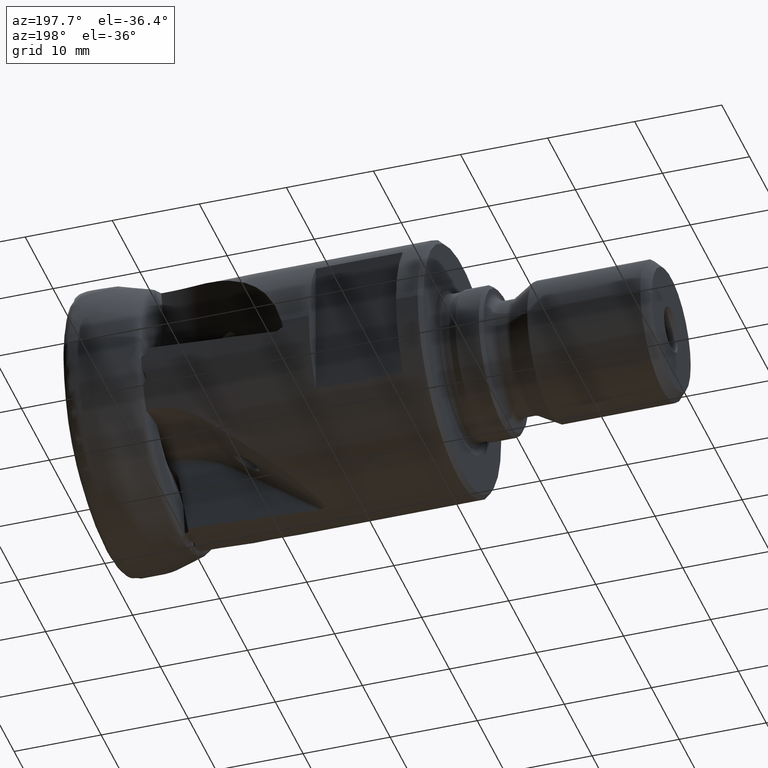
[diagram: clean part render]
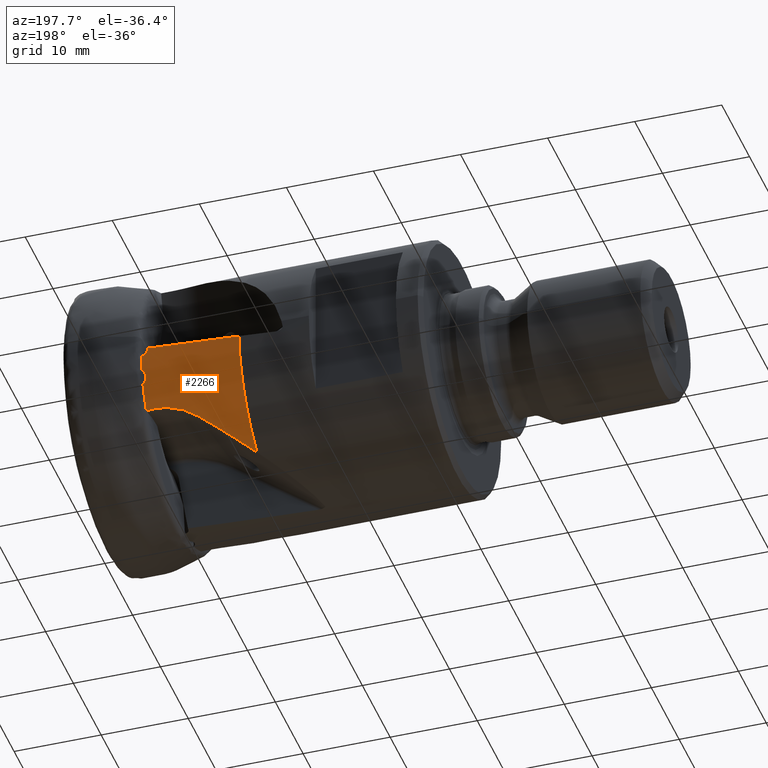
[diagram: same view with one face highlighted and labeled with its STEP entity id]
A machine part, auxiliary view. The second image highlights one B-rep face of the part: STEP entity #2266.
In plain terms, the highlighted conical surface has half-angle 0.432 deg.
Its self-contained STEP definition (entity closure, byte-faithful):
#28 = CARTESIAN_POINT ( 'NONE',  ( -9.488682350090380500, 14.41927078004068500, -0.2124144521498650100 ) ) ;
#68 = CARTESIAN_POINT ( 'NONE',  ( -10.51482623484257900, 12.51708256814934100, -7.176798088597557500 ) ) ;
#285 = CARTESIAN_POINT ( 'NONE',  ( -9.474060610462377200, 14.41484194131120100, -0.4118803801288440900 ) ) ;
#330 = CIRCLE ( 'NONE', #2502, 14.41529774433226100 ) ;
#546 = ORIENTED_EDGE ( 'NONE', *, *, #2109, .T. ) ;
#563 = VERTEX_POINT ( 'NONE', #6394 ) ;
#581 = EDGE_CURVE ( 'NONE', #3032, #2215, #2017, .T. ) ;
#583 = CARTESIAN_POINT ( 'NONE',  ( -9.252863098958306100, 12.52891085012548300, -7.137216703362820900 ) ) ;
#732 = CARTESIAN_POINT ( 'NONE',  ( -20.00000000000000000, 14.46901387109743300, -0.9474373847334510700 ) ) ;
#1073 = CARTESIAN_POINT ( 'NONE',  ( -9.378022152841058600, 14.39968294654202600, -0.7768286325400443100 ) ) ;
#1248 = AXIS2_PLACEMENT_3D ( 'NONE', #6348, #4313, #2800 ) ;
#1424 = CARTESIAN_POINT ( 'NONE',  ( -8.753422719671876400, 14.13042707852885400, -2.851638061909195000 ) ) ;
#1559 = CARTESIAN_POINT ( 'NONE',  ( -18.39673328062164600, 9.369468983272712500, -11.18653030867218100 ) ) ;
#1574 = CARTESIAN_POINT ( 'NONE',  ( -9.474060610462377200, 14.41484194131120100, -0.4118803801288440900 ) ) ;
#1585 = CARTESIAN_POINT ( 'NONE',  ( -12.92883651455309600, 12.17430072818993000, -7.778739744782705600 ) ) ;
#1595 = CARTESIAN_POINT ( 'NONE',  ( -8.939796449609019600, 14.37246185970106900, -1.128746984833576100 ) ) ;
#1651 = CARTESIAN_POINT ( 'NONE',  ( -8.753422719671876400, 14.13042707852885400, -2.851638061909195000 ) ) ;
#1655 = VERTEX_POINT ( 'NONE', #4578 ) ;
#1661 = ORIENTED_EDGE ( 'NONE', *, *, #3391, .F. ) ;
#1663 = CARTESIAN_POINT ( 'NONE',  ( -8.753422719671840800, -1.099598448417557100E-015, 0.0000000000000000000 ) ) ;
#1852 = B_SPLINE_CURVE_WITH_KNOTS ( 'NONE', 3,
 ( #5643, #2075, #4637, #1585, #5146, #2091, #5667, #2617, #6171, #3132, #68, #3631, #583, #4141 ),
 .UNSPECIFIED., .F., .F.,
 ( 4, 2, 2, 2, 2, 2, 4 ),
 ( 0.0005581979079638856900, 0.002063740630932714600, 0.002816511992417131800, 0.003569283353901548600, 0.004322054715385964500, 0.005074826076870381800, 0.006580368799839220500 ),
 .UNSPECIFIED. ) ;
#1946 = CARTESIAN_POINT ( 'NONE',  ( -9.174492714742243000, 13.98732788047316700, -3.503239865923081900 ) ) ;
#2017 = CIRCLE ( 'NONE', #2582, 14.50000000000000000 ) ;
#2075 = CARTESIAN_POINT ( 'NONE',  ( -14.01518296094445900, 11.83060589154204800, -8.311713707207916400 ) ) ;
#2081 = CARTESIAN_POINT ( 'NONE',  ( -16.49056846397207100, 14.45859552269082500, -0.7020340256850494700 ) ) ;
#2084 = CARTESIAN_POINT ( 'NONE',  ( -9.483877808903248100, 14.41825498506233000, -0.2789127871174085800 ) ) ;
#2091 = CARTESIAN_POINT ( 'NONE',  ( -12.22805648381694100, 12.32672470748464400, -7.524408140927995700 ) ) ;
#2109 = EDGE_CURVE ( 'NONE', #6056, #5670, #6071, .T. ) ;
#2172 = DIRECTION ( 'NONE',  ( -1.203390666459773500E-016, 1.000000000000000000, 0.0000000000000000000 ) ) ;
#2181 = ORIENTED_EDGE ( 'NONE', *, *, #4199, .F. ) ;
#2215 = VERTEX_POINT ( 'NONE', #732 ) ;
#2266 = ADVANCED_FACE ( 'NONE', ( #3174 ), #4196, .T. ) ;
#2268 = ORIENTED_EDGE ( 'NONE', *, *, #4633, .F. ) ;
#2383 = CARTESIAN_POINT ( 'NONE',  ( -8.753422719671840800, -1.099598448417557100E-015, 0.0000000000000000000 ) ) ;
#2429 =( BOUNDED_CURVE ( )  B_SPLINE_CURVE ( 3, ( #1574, #5136, #2084, #5657 ),
 .UNSPECIFIED., .F., .F. ) 
 B_SPLINE_CURVE_WITH_KNOTS ( ( 4, 4 ),
 ( 5.823188729631430000, 5.837039783446341400 ),
 .UNSPECIFIED. ) 
 CURVE ( )  GEOMETRIC_REPRESENTATION_ITEM ( )  RATIONAL_B_SPLINE_CURVE ( ( 1.000000000000000000, 0.9999840124229191200, 0.9999840124229191200, 1.000000000000000000 ) ) 
 REPRESENTATION_ITEM ( '' )  );
#2450 = CARTESIAN_POINT ( 'NONE',  ( -9.128166366310688700, 13.86211373022583300, -3.967948542563008100 ) ) ;
#2502 = AXIS2_PLACEMENT_3D ( 'NONE', #2383, #5956, #2912 ) ;
#2513 = CARTESIAN_POINT ( 'NONE',  ( -9.488682350090380500, 14.41927078004068500, -0.2124144521498650100 ) ) ;
#2581 = B_SPLINE_CURVE_WITH_KNOTS ( 'NONE', 3,
 ( #4103, #6161, #1073, #4644, #1595, #5151 ),
 .UNSPECIFIED., .F., .F.,
 ( 4, 2, 4 ),
 ( 1.192622389734054900E-018, 0.0005568184336804439300, 0.001113636867360886600 ),
 .UNSPECIFIED. ) ;
#2582 = AXIS2_PLACEMENT_3D ( 'NONE', #4814, #4293, #3351 ) ;
#2593 = CARTESIAN_POINT ( 'NONE',  ( -16.51096948033420400, 10.62428039444796800, -9.981921178612754600 ) ) ;
#2617 = CARTESIAN_POINT ( 'NONE',  ( -11.50773778804006200, 12.43502472476155400, -7.333091417564150800 ) ) ;
#2629 =( BOUNDED_CURVE ( )  B_SPLINE_CURVE ( 3, ( #28, #4084, #2081, #5653 ),
 .UNSPECIFIED., .F., .F. ) 
 B_SPLINE_CURVE_WITH_KNOTS ( ( 4, 4 ),
 ( 4.619132061810880400, 4.669712533094283900 ),
 .UNSPECIFIED. ) 
 CURVE ( )  GEOMETRIC_REPRESENTATION_ITEM ( )  RATIONAL_B_SPLINE_CURVE ( ( 1.000000000000000000, 0.9997868126902386100, 0.9997868126902386100, 1.000000000000000000 ) ) 
 REPRESENTATION_ITEM ( '' )  );
#2800 = DIRECTION ( 'NONE',  ( 1.203833085341295600E-016, -1.000000000000000000, 0.0000000000000000000 ) ) ;
#2834 = EDGE_CURVE ( 'NONE', #2952, #1655, #2581, .T. ) ;
#2912 = DIRECTION ( 'NONE',  ( -1.203390666459773500E-016, 1.000000000000000000, 0.0000000000000000000 ) ) ;
#2952 = VERTEX_POINT ( 'NONE', #285 ) ;
#2979 = CARTESIAN_POINT ( 'NONE',  ( -8.880279888315378400, 13.74007628648560500, -4.364488771589395600 ) ) ;
#2986 = AXIS2_PLACEMENT_3D ( 'NONE', #1663, #5225, #2172 ) ;
#3032 = VERTEX_POINT ( 'NONE', #4891 ) ;
#3132 = CARTESIAN_POINT ( 'NONE',  ( -10.76731270519524100, 12.50302827615779200, -7.205175213490162100 ) ) ;
#3174 = FACE_OUTER_BOUND ( 'NONE', #4682, .T. ) ;
#3351 = DIRECTION ( 'NONE',  ( -2.392722035830079000E-016, 1.000000000000000000, 0.0000000000000000000 ) ) ;
#3391 = EDGE_CURVE ( 'NONE', #5727, #2215, #2629, .T. ) ;
#3631 = CARTESIAN_POINT ( 'NONE',  ( -9.755585149620213100, 12.53960627480874400, -7.125875921168504800 ) ) ;
#3668 = ORIENTED_EDGE ( 'NONE', *, *, #2834, .T. ) ;
#3776 = ORIENTED_EDGE ( 'NONE', *, *, #4189, .F. ) ;
#4084 = CARTESIAN_POINT ( 'NONE',  ( -12.98604879488196500, 14.44201095671956700, -0.4569741378323011700 ) ) ;
#4103 = CARTESIAN_POINT ( 'NONE',  ( -9.474060610462377200, 14.41484194131120100, -0.4118803801288440900 ) ) ;
#4141 = CARTESIAN_POINT ( 'NONE',  ( -8.753422719671842600, 12.49331753896026100, -7.191510684721166900 ) ) ;
#4189 = EDGE_CURVE ( 'NONE', #3032, #563, #4915, .T. ) ;
#4196 = CONICAL_SURFACE ( 'NONE', #1248, 14.41000000000000200, 0.007531238360420368000 ) ;
#4199 = EDGE_CURVE ( 'NONE', #563, #5297, #1852, .T. ) ;
#4293 = DIRECTION ( 'NONE',  ( 1.000000000000000000, 1.224646799147351500E-016, -0.0000000000000000000 ) ) ;
#4313 = DIRECTION ( 'NONE',  ( -1.000000000000000000, -1.224646799147351500E-016, 0.0000000000000000000 ) ) ;
#4378 = CIRCLE ( 'NONE', #2986, 14.41529774433226100 ) ;
#4468 = CARTESIAN_POINT ( 'NONE',  ( -8.885243480133045300, 14.11336596114670300, -2.941197910198483500 ) ) ;
#4483 = CARTESIAN_POINT ( 'NONE',  ( -8.753422719671879900, 13.70807009395178600, -4.459778397752003800 ) ) ;
#4578 = CARTESIAN_POINT ( 'NONE',  ( -8.753422719671842600, 14.36936968205730700, -1.149793024036492600 ) ) ;
#4633 = EDGE_CURVE ( 'NONE', #2952, #5727, #2429, .T. ) ;
#4637 = CARTESIAN_POINT ( 'NONE',  ( -13.59842342003196900, 11.98519266752800900, -8.078686857007184600 ) ) ;
#4644 = CARTESIAN_POINT ( 'NONE',  ( -9.115524698108215400, 14.38082872957486200, -1.043592291980491200 ) ) ;
#4682 = EDGE_LOOP ( 'NONE', ( #3668, #4742, #546, #6109, #2181, #3776, #5085, #1661, #2268 ) ) ;
#4686 = CARTESIAN_POINT ( 'NONE',  ( -8.753422719671842600, 12.49331753896026100, -7.191510684721166900 ) ) ;
#4729 = EDGE_CURVE ( 'NONE', #5670, #5297, #4378, .T. ) ;
#4742 = ORIENTED_EDGE ( 'NONE', *, *, #5061, .T. ) ;
#4814 = CARTESIAN_POINT ( 'NONE',  ( -19.99999999999999600, -2.449293598294702600E-015, 0.0000000000000000000 ) ) ;
#4891 = CARTESIAN_POINT ( 'NONE',  ( -19.99999999999999600, 7.918995036294091100, -12.14658460700577100 ) ) ;
#4915 =( BOUNDED_CURVE ( )  B_SPLINE_CURVE ( 3, ( #5125, #1559, #2593, #6155 ),
 .UNSPECIFIED., .F., .F. ) 
 B_SPLINE_CURVE_WITH_KNOTS ( ( 4, 4 ),
 ( 0.7502125996699436900, 1.110815290452861600 ),
 .UNSPECIFIED. ) 
 CURVE ( )  GEOMETRIC_REPRESENTATION_ITEM ( )  RATIONAL_B_SPLINE_CURVE ( ( 1.000000000000000000, 0.9891931322540656900, 0.9891931322540656900, 1.000000000000000000 ) ) 
 REPRESENTATION_ITEM ( '' )  );
#4989 = CARTESIAN_POINT ( 'NONE',  ( -9.139005112252579700, 14.02549300875056200, -3.345278933880978700 ) ) ;
#5061 = EDGE_CURVE ( 'NONE', #1655, #6056, #330, .T. ) ;
#5085 = ORIENTED_EDGE ( 'NONE', *, *, #581, .T. ) ;
#5125 = CARTESIAN_POINT ( 'NONE',  ( -19.99999999999999600, 7.918995036294091100, -12.14658460700577100 ) ) ;
#5136 = CARTESIAN_POINT ( 'NONE',  ( -9.479003817770605500, 14.41677868188333300, -0.3454024927863650900 ) ) ;
#5146 = CARTESIAN_POINT ( 'NONE',  ( -12.69697207306810000, 12.23034795467274300, -7.686706948173352300 ) ) ;
#5151 = CARTESIAN_POINT ( 'NONE',  ( -8.753422719671842600, 14.36936968205730700, -1.149793024036492600 ) ) ;
#5225 = DIRECTION ( 'NONE',  ( -1.000000000000000000, -1.218955167360898200E-016, 0.0000000000000000000 ) ) ;
#5297 = VERTEX_POINT ( 'NONE', #4686 ) ;
#5513 = CARTESIAN_POINT ( 'NONE',  ( -9.168843271785021900, 13.90579995325877300, -3.813860445627428300 ) ) ;
#5643 = CARTESIAN_POINT ( 'NONE',  ( -14.40384619910697900, 11.64274752691988400, -8.571811371489783200 ) ) ;
#5653 = CARTESIAN_POINT ( 'NONE',  ( -20.00000000000000000, 14.46901387109743300, -0.9474373847334510700 ) ) ;
#5657 = CARTESIAN_POINT ( 'NONE',  ( -9.488682350090380500, 14.41927078004068500, -0.2124144521498650100 ) ) ;
#5667 = CARTESIAN_POINT ( 'NONE',  ( -11.99018065688476900, 12.36737961679025400, -7.453650773014550700 ) ) ;
#5670 = VERTEX_POINT ( 'NONE', #4483 ) ;
#5727 = VERTEX_POINT ( 'NONE', #2513 ) ;
#5956 = DIRECTION ( 'NONE',  ( -1.000000000000000000, -1.218955167360898200E-016, 0.0000000000000000000 ) ) ;
#6019 = CARTESIAN_POINT ( 'NONE',  ( -8.983711282373825200, 13.77927937249806500, -4.242982628457478500 ) ) ;
#6056 = VERTEX_POINT ( 'NONE', #1651 ) ;
#6071 = B_SPLINE_CURVE_WITH_KNOTS ( 'NONE', 3,
 ( #1424, #4468, #6504, #4989, #1946, #5513, #2450, #6019, #2979, #6531 ),
 .UNSPECIFIED., .F., .F.,
 ( 4, 2, 2, 2, 4 ),
 ( 0.0008028226454727603300, 0.001283462443801960900, 0.001764102242131161500, 0.002244742040460360800, 0.002725381838789560200 ),
 .UNSPECIFIED. ) ;
#6109 = ORIENTED_EDGE ( 'NONE', *, *, #4729, .T. ) ;
#6155 = CARTESIAN_POINT ( 'NONE',  ( -14.40384619910697900, 11.64274752691988400, -8.571811371489783200 ) ) ;
#6161 = CARTESIAN_POINT ( 'NONE',  ( -9.460101785141127100, 14.40937289628571200, -0.5996032813300696800 ) ) ;
#6171 = CARTESIAN_POINT ( 'NONE',  ( -11.26317100278875400, 12.46201359926934100, -7.283287582225627300 ) ) ;
#6348 = CARTESIAN_POINT ( 'NONE',  ( -8.049999999999574400, -9.858406733135658000E-016, 0.0000000000000000000 ) ) ;
#6394 = CARTESIAN_POINT ( 'NONE',  ( -14.40384619910697900, 11.64274752691988400, -8.571811371489783200 ) ) ;
#6504 = CARTESIAN_POINT ( 'NONE',  ( -8.994135309592710600, 14.08854719823519000, -3.063775741321181900 ) ) ;
#6531 = CARTESIAN_POINT ( 'NONE',  ( -8.753422719671879900, 13.70807009395178600, -4.459778397752003800 ) ) ;